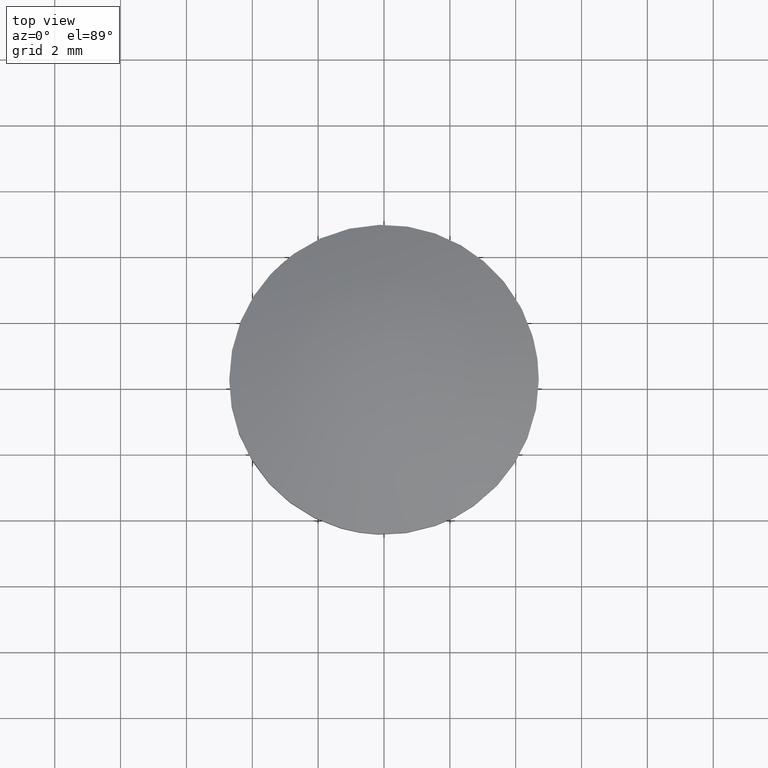
[diagram: clean part render]
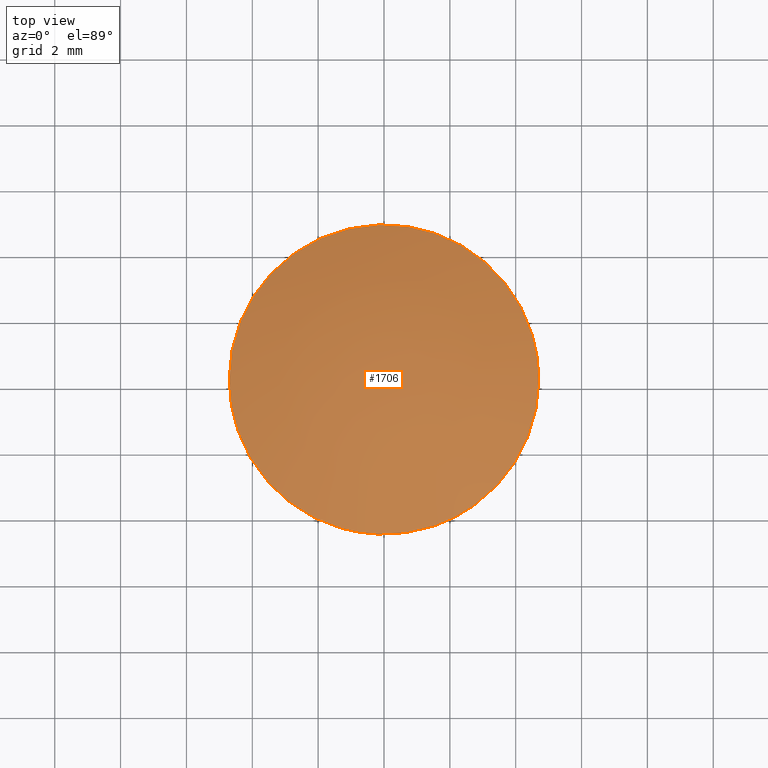
[diagram: same view with one face highlighted and labeled with its STEP entity id]
A machine part, top view. The second image highlights one B-rep face of the part: STEP entity #1706.
In plain terms, the highlighted face is a freeform B-spline surface patch.
Its self-contained STEP definition (entity closure, byte-faithful):
#1339=CARTESIAN_POINT('',(-1.297747635338202,-4.517289802870478,5.499996454043490));
#1340=VERTEX_POINT('',#1339);
#1346=CARTESIAN_POINT('',(-4.700007955760090,0.0,5.499996454043490));
#1347=VERTEX_POINT('',#1346);
#1348=CARTESIAN_POINT('',(-1.297747635338202,-4.517289802870478,5.499996454043490));
#1349=CARTESIAN_POINT('',(-4.700007681170831,-3.539874040776995,5.499996454043490));
#1350=CARTESIAN_POINT('',(-4.700007955760090,0.0,5.499996454043490));
#1358=(BOUNDED_CURVE()B_SPLINE_CURVE(2,(#1348,#1349,#1350),.UNSPECIFIED.,.F.,.U.)B_SPLINE_CURVE_WITH_KNOTS((3,3),(0.797035426093683,1.0),.UNSPECIFIED.)CURVE()GEOMETRIC_REPRESENTATION_ITEM()RATIONAL_B_SPLINE_CURVE((0.910524400035751,0.762212210573912,1.0))REPRESENTATION_ITEM(''));
#1359=EDGE_CURVE('',#1340,#1347,#1358,.T.);
#1361=CARTESIAN_POINT('',(4.700007955760090,0.0,5.499996454043490));
#1362=VERTEX_POINT('',#1361);
#1363=CARTESIAN_POINT('',(-4.700007955760090,0.0,5.499996454043490));
#1364=CARTESIAN_POINT('',(-4.700007955760091,4.700007955760091,5.499996454043491));
#1365=CARTESIAN_POINT('',(0.0,4.700007955760090,5.499996454043490));
#1366=CARTESIAN_POINT('',(4.700007955760091,4.700007955760091,5.499996454043491));
#1367=CARTESIAN_POINT('',(4.700007955760090,0.0,5.499996454043490));
#1375=(BOUNDED_CURVE()B_SPLINE_CURVE(2,(#1363,#1364,#1365,#1366,#1367),.UNSPECIFIED.,.F.,.U.)B_SPLINE_CURVE_WITH_KNOTS((3,2,3),(0.0,0.250000000000000,0.500000000000000),.UNSPECIFIED.)CURVE()GEOMETRIC_REPRESENTATION_ITEM()RATIONAL_B_SPLINE_CURVE((1.0,0.707106781186548,1.0,0.707106781186548,1.0))REPRESENTATION_ITEM(''));
#1376=EDGE_CURVE('',#1347,#1362,#1375,.T.);
#1378=CARTESIAN_POINT('',(1.568891618224706,-4.430421557639955,5.499996454043490));
#1379=VERTEX_POINT('',#1378);
#1380=CARTESIAN_POINT('',(4.700007955760090,0.0,5.499996454043490));
#1381=CARTESIAN_POINT('',(4.700007623799596,-3.321638359718820,5.499996454043491));
#1382=CARTESIAN_POINT('',(1.568891618224706,-4.430421557639955,5.499996454043490));
#1390=(BOUNDED_CURVE()B_SPLINE_CURVE(2,(#1380,#1381,#1382),.UNSPECIFIED.,.F.,.U.)B_SPLINE_CURVE_WITH_KNOTS((3,3),(0.500000000000000,0.693285188087711),.UNSPECIFIED.)CURVE()GEOMETRIC_REPRESENTATION_ITEM()RATIONAL_B_SPLINE_CURVE((1.0,0.773552316448107,0.897256497755047))REPRESENTATION_ITEM(''));
#1391=EDGE_CURVE('',#1362,#1379,#1390,.T.);
#1493=CARTESIAN_POINT('',(1.568891618224706,-4.430421557639955,5.499996454043490));
#1494=CARTESIAN_POINT('',(0.807607308204542,-4.700006071043585,5.499996454043491));
#1495=CARTESIAN_POINT('',(2.844664E-009,-4.700006060696817,5.499996454043490));
#1496=CARTESIAN_POINT('',(-0.661736561141981,-4.700006052218892,5.499996454043490));
#1497=CARTESIAN_POINT('',(-1.297747635338202,-4.517289802870478,5.499996454043490));
#1505=(BOUNDED_CURVE()B_SPLINE_CURVE(2,(#1493,#1494,#1495,#1496,#1497),.UNSPECIFIED.,.F.,.U.)B_SPLINE_CURVE_WITH_KNOTS((3,2,3),(0.693285188087711,0.750000000000000,0.797035426093683),.UNSPECIFIED.)CURVE()GEOMETRIC_REPRESENTATION_ITEM()RATIONAL_B_SPLINE_CURVE((0.897256497755047,0.933554464738441,1.0,0.944894570612635,0.910524400035751))REPRESENTATION_ITEM(''));
#1506=EDGE_CURVE('',#1379,#1340,#1505,.T.);
#1676=CARTESIAN_POINT('',(-4.870146425204402,-4.869929682271544,4.220661535303213));
#1677=CARTESIAN_POINT('',(-2.561509026789874,-5.122790056747403,5.301209307494593));
#1678=CARTESIAN_POINT('',(2.561509097945630,-5.122790056747403,5.301209307494593));
#1679=CARTESIAN_POINT('',(4.870146547135925,-4.869929668916631,4.220661478233688));
#1680=CARTESIAN_POINT('',(-5.122994377749147,-2.561383190985244,5.301108138113985));
#1681=CARTESIAN_POINT('',(-2.701780545688227,-2.701660304572612,6.499999999999893));
#1682=CARTESIAN_POINT('',(2.701780620740563,-2.701660304572612,6.499999999999893));
#1683=CARTESIAN_POINT('',(5.122994505281711,-2.561383183596429,5.301108074964770));
#1684=CARTESIAN_POINT('',(-5.122994377749147,2.561491871927127,5.301108138113990));
#1685=CARTESIAN_POINT('',(-2.701780545688227,2.701774937552004,6.499999999999900));
#1686=CARTESIAN_POINT('',(2.701780620740563,2.701774937552004,6.499999999999900));
#1687=CARTESIAN_POINT('',(5.122994505281711,2.561491864537998,5.301108074964773));
#1688=CARTESIAN_POINT('',(-4.870126026912156,4.870115917900826,4.220574371197927));
#1689=CARTESIAN_POINT('',(-2.561497741013139,5.122984848129110,5.301112856809428));
#1690=CARTESIAN_POINT('',(2.561497812168581,5.122984848129110,5.301112856809428));
#1691=CARTESIAN_POINT('',(4.870126148843223,4.870115904545457,4.220574314128880));
#1699=(BOUNDED_SURFACE()B_SPLINE_SURFACE(2,2,((#1676,#1680,#1684,#1688),(#1677,#1681,#1685,#1689),(#1678,#1682,#1686,#1690),(#1679,#1683,#1687,#1691)),.UNSPECIFIED.,.F.,.F.,.U.)B_SPLINE_SURFACE_WITH_KNOTS((3,1,3),(3,1,3),(1.723461795580387,6.875763190119311,12.028064727783200),(1.723691095650196,6.875763190119312,12.028053889930250),.UNSPECIFIED.)GEOMETRIC_REPRESENTATION_ITEM()RATIONAL_B_SPLINE_SURFACE(((1.109527439136425,1.054766156848796,1.054766156848796,1.109532086339564),(1.054761282287630,1.0,1.0,1.054765929490768),(1.054761282287630,1.0,1.0,1.054765929490768),(1.109527442179106,1.054766159891477,1.054766159891477,1.109532089382245)))REPRESENTATION_ITEM('')SURFACE());
#1700=ORIENTED_EDGE('',*,*,#1359,.F.);
#1701=ORIENTED_EDGE('',*,*,#1506,.F.);
#1702=ORIENTED_EDGE('',*,*,#1391,.F.);
#1703=ORIENTED_EDGE('',*,*,#1376,.F.);
#1704=EDGE_LOOP('',(#1700,#1701,#1702,#1703));
#1705=FACE_OUTER_BOUND('',#1704,.T.);
#1706=ADVANCED_FACE('',(#1705),#1699,.T.);